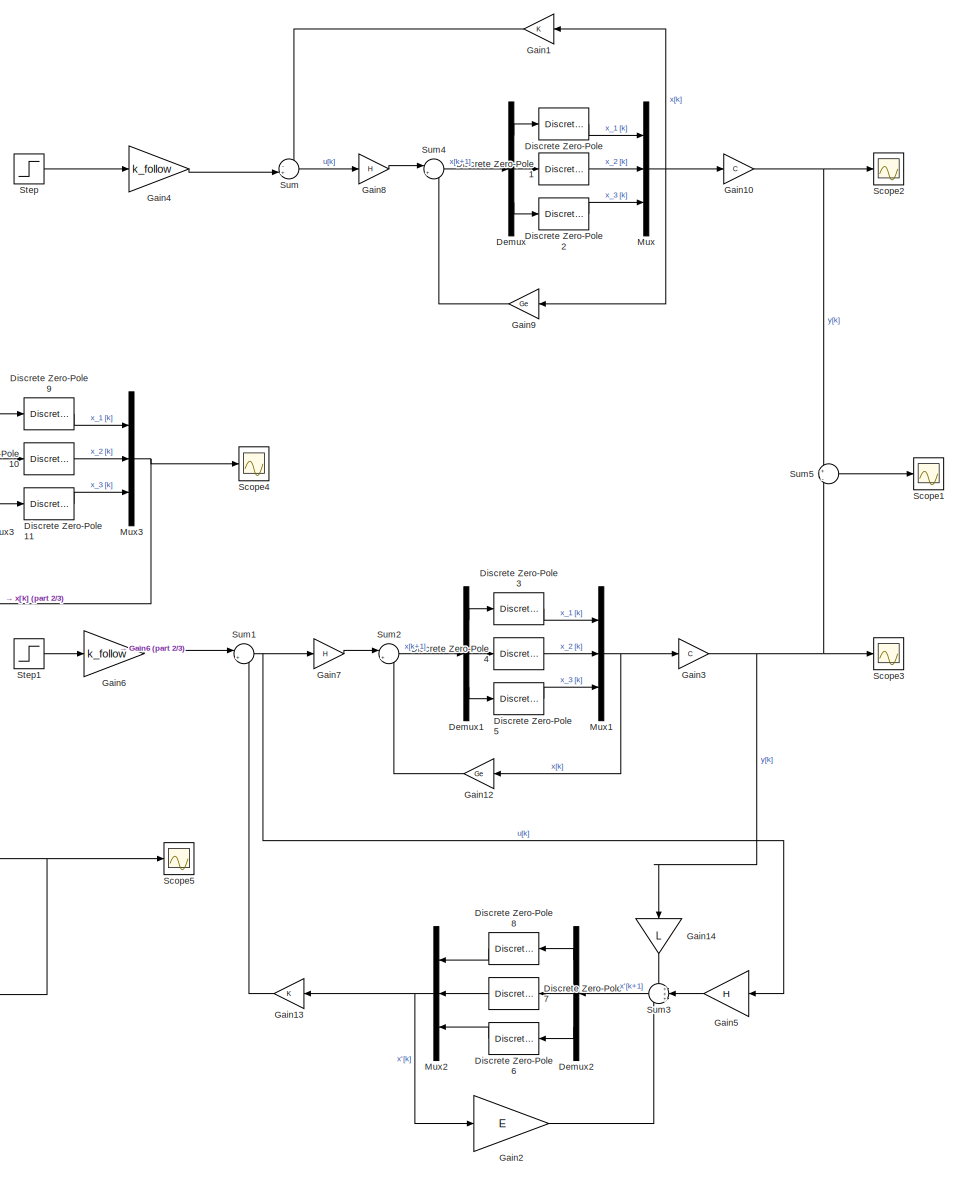
[diagram: root canvas - part 1/3, right side, full height]
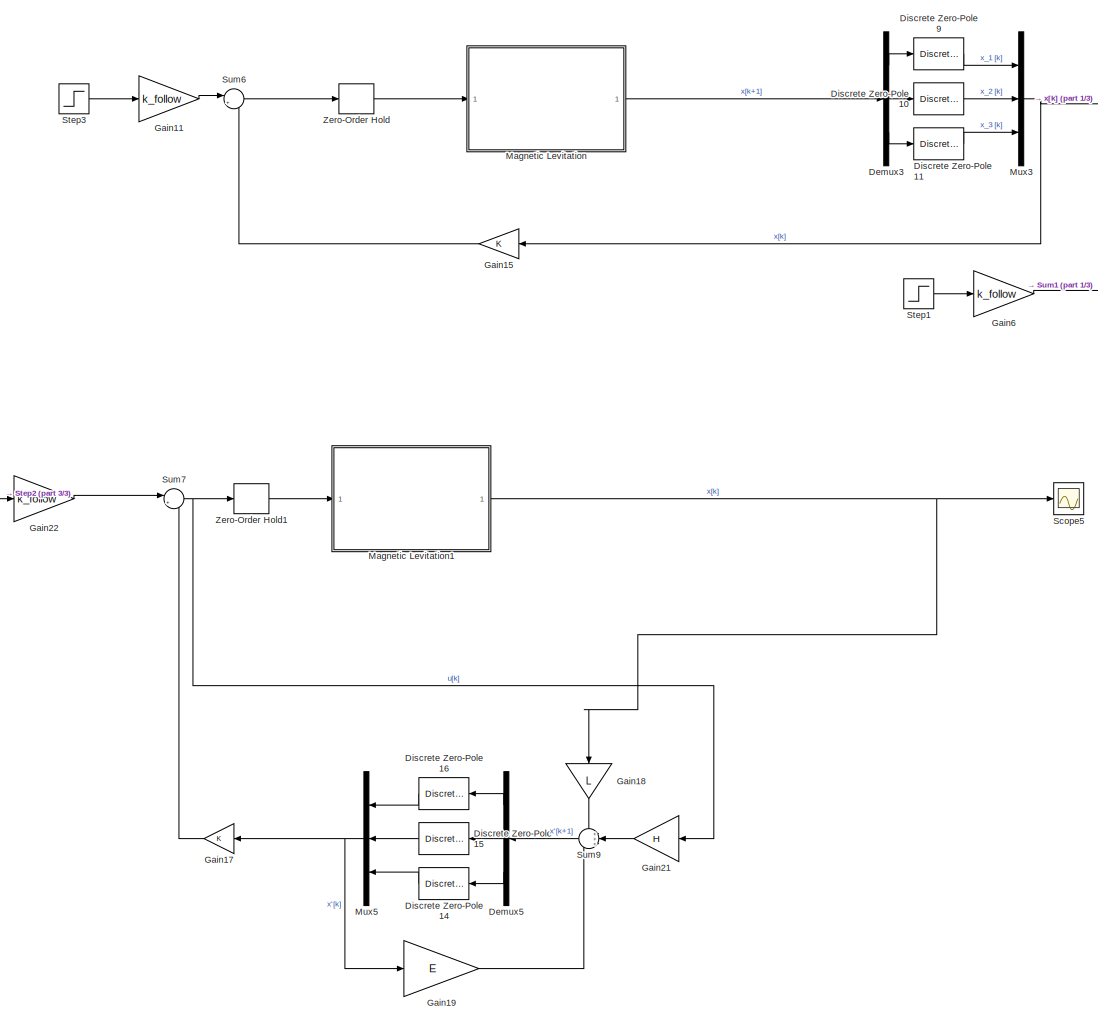
[diagram: root canvas - part 2/3, middle left region]
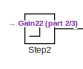
[diagram: root canvas - part 3/3, middle left region]
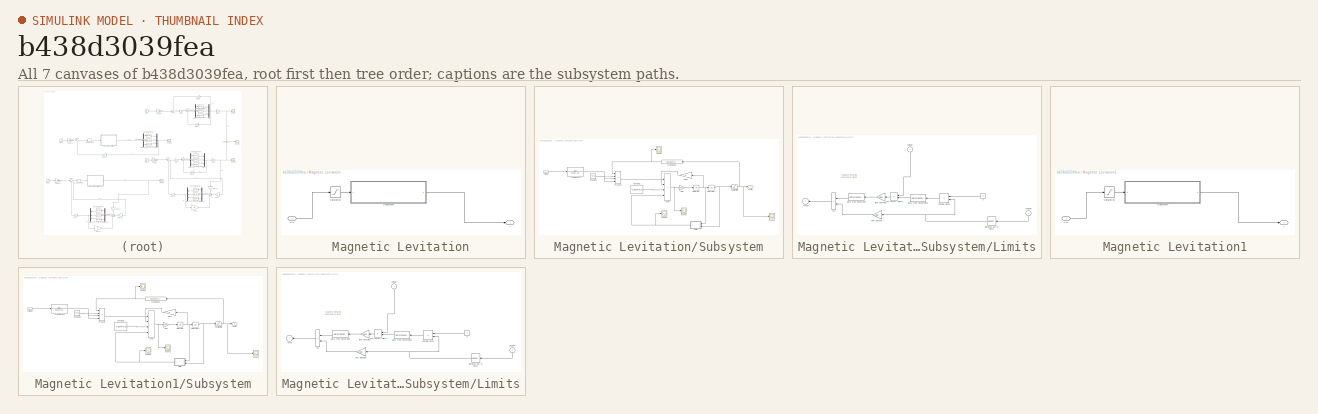
[diagram: thumbnail index - all 7 canvases of the model, root first then tree order]
MODEL slx_b438d3039fea
KIND model
CONFIG AbsTol = auto
CONFIG EnableMultiTasking = off
CONFIG FixedStep = auto
CONFIG MaxStep = auto
CONFIG MinStep = auto
CONFIG RelTol = 1e-3
CONFIG SampleTimeConstraint = Unconstrained
CONFIG SolverName = VariableStepAuto
CONFIG StartTime = 0.0
CONFIG StopTime = 10.0
BLOCK [Demux] Demux
  Outputs = 3
  Ports = [1, 3]
BLOCK [Demux] Demux1
  Outputs = 3
  Ports = [1, 3]
BLOCK [Demux] Demux2
  Outputs = 3
  Ports = [1, 3]
BLOCK [Demux] Demux3
  Outputs = 3
  Ports = [1, 3]
BLOCK [Demux] Demux5
  Outputs = 3
  Ports = [1, 3]
BLOCK [DiscreteZeroPole] Discrete Zero-Pole
  Gain = 1
  Poles = [0]
  SampleTime = Ts(2)
  Zeros = []
BLOCK [DiscreteZeroPole] Discrete Zero-Pole1
  Gain = 1
  Poles = [0]
  SampleTime = Ts(2)
  Zeros = []
BLOCK [DiscreteZeroPole] Discrete Zero-Pole10
  Gain = 1
  Poles = [0]
  SampleTime = Ts(4)
BLOCK [DiscreteZeroPole] Discrete Zero-Pole11
  Gain = 1
  Poles = [0]
  SampleTime = Ts(4)
  Zeros = []
BLOCK [DiscreteZeroPole] Discrete Zero-Pole14
  Gain = 1
  NameLocation = top
  Poles = [0]
  SampleTime = Ts(2)
  Zeros = []
BLOCK [DiscreteZeroPole] Discrete Zero-Pole15
  Gain = 1
  NameLocation = top
  Poles = [0]
  SampleTime = Ts(2)
  Zeros = []
BLOCK [DiscreteZeroPole] Discrete Zero-Pole16
  Gain = 1
  NameLocation = top
  Poles = [0]
  SampleTime = Ts(2)
  Zeros = []
BLOCK [DiscreteZeroPole] Discrete Zero-Pole2
  Gain = 1
  Poles = [0]
  SampleTime = Ts(2)
  Zeros = []
BLOCK [DiscreteZeroPole] Discrete Zero-Pole3
  Gain = 1
  Poles = [0]
  SampleTime = Ts(2)
  Zeros = []
BLOCK [DiscreteZeroPole] Discrete Zero-Pole4
  Gain = 1
  Poles = [0]
  SampleTime = Ts(2)
  Zeros = []
BLOCK [DiscreteZeroPole] Discrete Zero-Pole5
  Gain = 1
  Poles = [0]
  SampleTime = Ts(2)
  Zeros = []
BLOCK [DiscreteZeroPole] Discrete Zero-Pole6
  Gain = 1
  NameLocation = top
  Poles = [0]
  SampleTime = Ts(2)
  Zeros = []
BLOCK [DiscreteZeroPole] Discrete Zero-Pole7
  Gain = 1
  NameLocation = top
  Poles = [0]
  SampleTime = Ts(2)
  Zeros = []
BLOCK [DiscreteZeroPole] Discrete Zero-Pole8
  Gain = 1
  NameLocation = top
  Poles = [0]
  SampleTime = Ts(2)
  Zeros = []
BLOCK [DiscreteZeroPole] Discrete Zero-Pole9
  Gain = 1
  Poles = []
  SampleTime = Ts(4)
  Zeros = []
BLOCK [Gain] Gain1
  Gain = K
  Multiplication = Matrix(K*u)
  NameLocation = top
BLOCK [Gain] Gain10
  Gain = C
  Multiplication = Matrix(K*u)
BLOCK [Gain] Gain11
  Gain = k_follow
BLOCK [Gain] Gain12
  Gain = Ge
  Multiplication = Matrix(K*u)
  NameLocation = top
BLOCK [Gain] Gain13
  Gain = K
  Multiplication = Matrix(K*u)
  NameLocation = top
BLOCK [Gain] Gain14
  Gain = L
  Multiplication = Matrix(K*u)
  NameLocation = left
BLOCK [Gain] Gain15
  Gain = K
  Multiplication = Matrix(K*u)
  NameLocation = top
BLOCK [Gain] Gain17
  Gain = K
  Multiplication = Matrix(K*u)
  NameLocation = top
BLOCK [Gain] Gain18
  Gain = L
  Multiplication = Matrix(K*u)
  NameLocation = left
BLOCK [Gain] Gain19
  Gain = E
  Multiplication = Matrix(K*u)
BLOCK [Gain] Gain2
  Gain = E
  Multiplication = Matrix(K*u)
BLOCK [Gain] Gain21
  Gain = H
  Multiplication = Matrix(K*u)
  NameLocation = top
BLOCK [Gain] Gain22
  Gain = k_follow
BLOCK [Gain] Gain3
  Gain = C
  Multiplication = Matrix(K*u)
BLOCK [Gain] Gain4
  Gain = k_follow
BLOCK [Gain] Gain5
  Gain = H
  Multiplication = Matrix(K*u)
  NameLocation = top
BLOCK [Gain] Gain6
  Gain = k_follow
BLOCK [Gain] Gain7
  Gain = H
  Multiplication = Matrix(K*u)
BLOCK [Gain] Gain8
  Gain = H
  Multiplication = Matrix(K*u)
BLOCK [Gain] Gain9
  Gain = Ge
  Multiplication = Matrix(K*u)
  NameLocation = top
BLOCK [SubSystem] Magnetic Levitation
  Permissions = NoReadOrWrite
  Ports = [1, 1]
  RequestExecContextInheritance = off
BLOCK [Saturate] Magnetic Levitation/Saturation
  LowerLimit = -6
  UpperLimit = 10
  ZeroCross = off
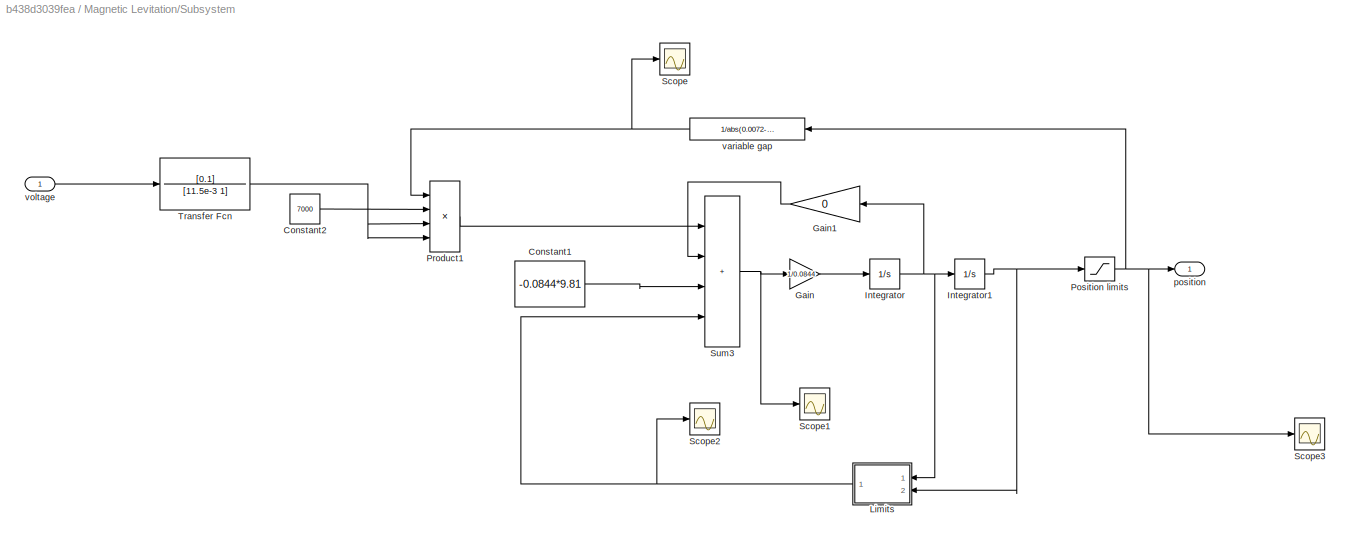
BLOCK [SubSystem] Magnetic Levitation/Subsystem
  Ports = [1, 1]
  RequestExecContextInheritance = off
BLOCK [Constant] Magnetic Levitation/Subsystem/Constant1
  Value = -0.0844*9.81
BLOCK [Constant] Magnetic Levitation/Subsystem/Constant2
  Value = 7000
BLOCK [Gain] Magnetic Levitation/Subsystem/Gain
  Gain = 1/0.0844
BLOCK [Gain] Magnetic Levitation/Subsystem/Gain1
  Gain = 0
  NameLocation = top
BLOCK [Integrator] Magnetic Levitation/Subsystem/Integrator
  Ports = [1, 1]
BLOCK [Integrator] Magnetic Levitation/Subsystem/Integrator1
  LimitOutput = on
  LowerSaturationLimit = 0
  Ports = [1, 1]
  UpperSaturationLimit = 0.005
BLOCK [SubSystem] Magnetic Levitation/Subsystem/Limits
  Ports = [2, 1]
  RequestExecContextInheritance = off
  ShowPortLabels = none
BLOCK [Constant] Magnetic Levitation/Subsystem/Limits/0
  Value = 0
BLOCK [DataTypeConversion] Magnetic Levitation/Subsystem/Limits/Data Type Conversion
  NameLocation = top
  OutDataTypeStr = double
  RndMeth = Floor
  SaturateOnIntegerOverflow = off
BLOCK [DataTypeConversion] Magnetic Levitation/Subsystem/Limits/Data Type Conversion1
  NameLocation = top
  OutDataTypeStr = double
  RndMeth = Floor
  SaturateOnIntegerOverflow = off
BLOCK [DeadZone] Magnetic Levitation/Subsystem/Limits/Distance out of limits
  LowerValue = 0.0002
  UpperValue = 5e-3
  ZeroCross = off
BLOCK [Sum] Magnetic Levitation/Subsystem/Limits/Fc1
  IconShape = rectangular
  InputSameDT = on
  Inputs = --
  OutDataTypeStr = Inherit: Same as first input
  Ports = [2, 1]
  SaturateOnIntegerOverflow = on
BLOCK [Product] Magnetic Levitation/Subsystem/Limits/Just on//off switch 
  InputSameDT = on
  OutDataTypeStr = Inherit: Same as first input
  Ports = [2, 1]
  SaturateOnIntegerOverflow = on
BLOCK [RelationalOperator] Magnetic Levitation/Subsystem/Limits/Outside Limits
  Operator = ~=
  Ports = [2, 1]
BLOCK [Outport] Magnetic Levitation/Subsystem/Limits/force
  VectorParamsAs1DForOutWhenUnconnected = off
BLOCK [Gain] Magnetic Levitation/Subsystem/Limits/limit damping
  Gain = 2800
  OutDataTypeStr = Inherit: Same as input
  ParamDataTypeStr = Inherit: Same as input
  SaturateOnIntegerOverflow = on
BLOCK [Gain] Magnetic Levitation/Subsystem/Limits/limit elasticity
  Gain = 500
  OutDataTypeStr = Inherit: Same as input
  ParamDataTypeStr = Inherit: Same as input
  SaturateOnIntegerOverflow = on
BLOCK [Inport] Magnetic Levitation/Subsystem/Limits/position
  NameLocation = right
  Port = 2
BLOCK [Inport] Magnetic Levitation/Subsystem/Limits/velocity
  NameLocation = right
BLOCK [Saturate] Magnetic Levitation/Subsystem/Position limits
  LowerLimit = 0.00001
  UpperLimit = 0.00499
  ZeroCross = off
BLOCK [Product] Magnetic Levitation/Subsystem/Product1
  Inputs = 4
  Ports = [4, 1]
BLOCK [Scope] Magnetic Levitation/Subsystem/Scope
  Floating = off
  NumInputPorts = 1
  Ports = [1]
  ScopeSpecificationString = Simulink.scopes.TimeScopeBlockCfg('CurrentConfiguration', extmgr.ConfigurationSet(extmgr.Configuration('Core','General UI',true),extmgr.Configuration('Core','Source UI',true),extmgr.Configuration('Sources','WiredSimulink',true,'DataLoggingVariableName','ScopeData1'),extmgr.Configuration('Visuals','Time Domain',true,'SerializedDisplays',{struct('MinYLimReal','-40.54054','MaxYLimReal','374.87487','Y...<+1381ch>
BLOCK [Scope] Magnetic Levitation/Subsystem/Scope1
  Floating = off
  NumInputPorts = 1
  Ports = [1]
  ScopeSpecificationString = Simulink.scopes.TimeScopeBlockCfg('CurrentConfiguration', extmgr.ConfigurationSet(extmgr.Configuration('Core','General UI',true),extmgr.Configuration('Core','Source UI',true),extmgr.Configuration('Sources','WiredSimulink',true,'DataLoggingVariableName','ScopeData2'),extmgr.Configuration('Visuals','Time Domain',true,'SerializedDisplays',{struct('MinYLimReal','-21376391083219120442781708779858395089...<+3841ch>
BLOCK [Scope] Magnetic Levitation/Subsystem/Scope2
  Floating = off
  NumInputPorts = 1
  Ports = [1]
  ScopeSpecificationString = Simulink.scopes.TimeScopeBlockCfg('CurrentConfiguration', extmgr.ConfigurationSet(extmgr.Configuration('Core','General UI',true),extmgr.Configuration('Core','Source UI',true),extmgr.Configuration('Sources','WiredSimulink',true,'DataLoggingVariableName','ScopeData3'),extmgr.Configuration('Visuals','Time Domain',true,'SerializedDisplays',{struct('MinYLimReal','-0.1107','MaxYLimReal','1.19629','YLabe...<+1363ch>
BLOCK [Scope] Magnetic Levitation/Subsystem/Scope3
  Floating = off
  NumInputPorts = 1
  Ports = [1]
  ScopeSpecificationString = Simulink.scopes.TimeScopeBlockCfg('CurrentConfiguration', extmgr.ConfigurationSet(extmgr.Configuration('Core','General UI',true),extmgr.Configuration('Core','Source UI',true),extmgr.Configuration('Sources','WiredSimulink',true,'DataLoggingVariableName','ScopeData2'),extmgr.Configuration('Visuals','Time Domain',true,'SerializedDisplays',{struct('MinYLimReal','-0.00029','MaxYLimReal','0.00267','YLab...<+1402ch>
BLOCK [Sum] Magnetic Levitation/Subsystem/Sum3
  IconShape = rectangular
  Inputs = ++++
  Ports = [4, 1]
BLOCK [TransferFcn] Magnetic Levitation/Subsystem/Transfer Fcn
  Denominator = [11.5e-3 1]
  Numerator = [0.1]
BLOCK [Outport] Magnetic Levitation/Subsystem/position 
  VectorParamsAs1DForOutWhenUnconnected = off
BLOCK [Fcn] Magnetic Levitation/Subsystem/variable gap
  Expr = 1/abs(0.0072-u)
BLOCK [Inport] Magnetic Levitation/Subsystem/voltage
BLOCK [Inport] Magnetic Levitation/Vin
BLOCK [Outport] Magnetic Levitation/y
  VectorParamsAs1DForOutWhenUnconnected = off
BLOCK [SubSystem] Magnetic Levitation1
  Permissions = NoReadOrWrite
  Ports = [1, 1]
  RequestExecContextInheritance = off
BLOCK [Saturate] Magnetic Levitation1/Saturation
  LowerLimit = -6
  UpperLimit = 10
  ZeroCross = off
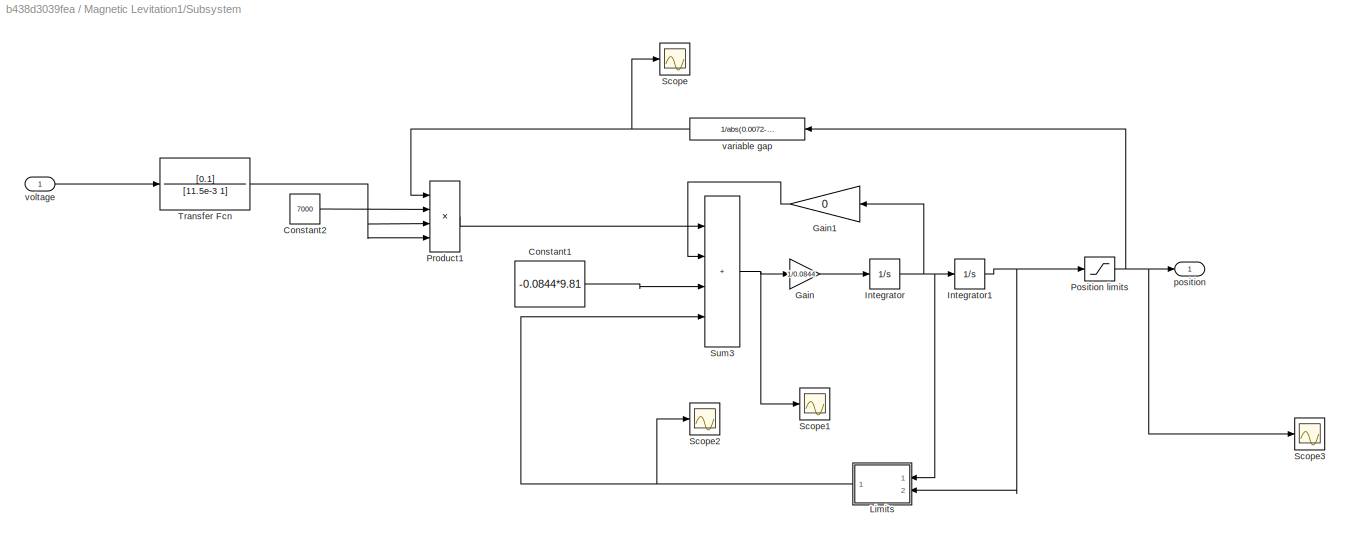
BLOCK [SubSystem] Magnetic Levitation1/Subsystem
  Ports = [1, 1]
  RequestExecContextInheritance = off
BLOCK [Constant] Magnetic Levitation1/Subsystem/Constant1
  Value = -0.0844*9.81
BLOCK [Constant] Magnetic Levitation1/Subsystem/Constant2
  Value = 7000
BLOCK [Gain] Magnetic Levitation1/Subsystem/Gain
  Gain = 1/0.0844
BLOCK [Gain] Magnetic Levitation1/Subsystem/Gain1
  Gain = 0
  NameLocation = top
BLOCK [Integrator] Magnetic Levitation1/Subsystem/Integrator
  Ports = [1, 1]
BLOCK [Integrator] Magnetic Levitation1/Subsystem/Integrator1
  LimitOutput = on
  LowerSaturationLimit = 0
  Ports = [1, 1]
  UpperSaturationLimit = 0.005
BLOCK [SubSystem] Magnetic Levitation1/Subsystem/Limits
  Ports = [2, 1]
  RequestExecContextInheritance = off
  ShowPortLabels = none
BLOCK [Constant] Magnetic Levitation1/Subsystem/Limits/0
  Value = 0
BLOCK [DataTypeConversion] Magnetic Levitation1/Subsystem/Limits/Data Type Conversion
  NameLocation = top
  OutDataTypeStr = double
  RndMeth = Floor
  SaturateOnIntegerOverflow = off
BLOCK [DataTypeConversion] Magnetic Levitation1/Subsystem/Limits/Data Type Conversion1
  NameLocation = top
  OutDataTypeStr = double
  RndMeth = Floor
  SaturateOnIntegerOverflow = off
BLOCK [DeadZone] Magnetic Levitation1/Subsystem/Limits/Distance out of limits
  LowerValue = 0.0002
  UpperValue = 5e-3
  ZeroCross = off
BLOCK [Sum] Magnetic Levitation1/Subsystem/Limits/Fc1
  IconShape = rectangular
  InputSameDT = on
  Inputs = --
  OutDataTypeStr = Inherit: Same as first input
  Ports = [2, 1]
  SaturateOnIntegerOverflow = on
BLOCK [Product] Magnetic Levitation1/Subsystem/Limits/Just on//off switch 
  InputSameDT = on
  OutDataTypeStr = Inherit: Same as first input
  Ports = [2, 1]
  SaturateOnIntegerOverflow = on
BLOCK [RelationalOperator] Magnetic Levitation1/Subsystem/Limits/Outside Limits
  Operator = ~=
  Ports = [2, 1]
BLOCK [Outport] Magnetic Levitation1/Subsystem/Limits/force
  VectorParamsAs1DForOutWhenUnconnected = off
BLOCK [Gain] Magnetic Levitation1/Subsystem/Limits/limit damping
  Gain = 2800
  OutDataTypeStr = Inherit: Same as input
  ParamDataTypeStr = Inherit: Same as input
  SaturateOnIntegerOverflow = on
BLOCK [Gain] Magnetic Levitation1/Subsystem/Limits/limit elasticity
  Gain = 500
  OutDataTypeStr = Inherit: Same as input
  ParamDataTypeStr = Inherit: Same as input
  SaturateOnIntegerOverflow = on
BLOCK [Inport] Magnetic Levitation1/Subsystem/Limits/position
  NameLocation = right
  Port = 2
BLOCK [Inport] Magnetic Levitation1/Subsystem/Limits/velocity
  NameLocation = right
BLOCK [Saturate] Magnetic Levitation1/Subsystem/Position limits
  LowerLimit = 0.00001
  UpperLimit = 0.00499
  ZeroCross = off
BLOCK [Product] Magnetic Levitation1/Subsystem/Product1
  Inputs = 4
  Ports = [4, 1]
BLOCK [Scope] Magnetic Levitation1/Subsystem/Scope
  Floating = off
  NumInputPorts = 1
  Ports = [1]
  ScopeSpecificationString = Simulink.scopes.TimeScopeBlockCfg('CurrentConfiguration', extmgr.ConfigurationSet(extmgr.Configuration('Core','General UI',true),extmgr.Configuration('Core','Source UI',true),extmgr.Configuration('Sources','WiredSimulink',true,'DataLoggingVariableName','ScopeData1'),extmgr.Configuration('Visuals','Time Domain',true,'SerializedDisplays',{struct('MinYLimReal','-40.54054','MaxYLimReal','374.87487','Y...<+1381ch>
BLOCK [Scope] Magnetic Levitation1/Subsystem/Scope1
  Floating = off
  NumInputPorts = 1
  Ports = [1]
  ScopeSpecificationString = Simulink.scopes.TimeScopeBlockCfg('CurrentConfiguration', extmgr.ConfigurationSet(extmgr.Configuration('Core','General UI',true),extmgr.Configuration('Core','Source UI',true),extmgr.Configuration('Sources','WiredSimulink',true,'DataLoggingVariableName','ScopeData2'),extmgr.Configuration('Visuals','Time Domain',true,'SerializedDisplays',{struct('MinYLimReal','-21376391083219120442781708779858395089...<+3841ch>
BLOCK [Scope] Magnetic Levitation1/Subsystem/Scope2
  Floating = off
  NumInputPorts = 1
  Ports = [1]
  ScopeSpecificationString = Simulink.scopes.TimeScopeBlockCfg('CurrentConfiguration', extmgr.ConfigurationSet(extmgr.Configuration('Core','General UI',true),extmgr.Configuration('Core','Source UI',true),extmgr.Configuration('Sources','WiredSimulink',true,'DataLoggingVariableName','ScopeData3'),extmgr.Configuration('Visuals','Time Domain',true,'SerializedDisplays',{struct('MinYLimReal','-0.1107','MaxYLimReal','1.19629','YLabe...<+1363ch>
BLOCK [Scope] Magnetic Levitation1/Subsystem/Scope3
  Floating = off
  NumInputPorts = 1
  Ports = [1]
  ScopeSpecificationString = Simulink.scopes.TimeScopeBlockCfg('CurrentConfiguration', extmgr.ConfigurationSet(extmgr.Configuration('Core','General UI',true),extmgr.Configuration('Core','Source UI',true),extmgr.Configuration('Sources','WiredSimulink',true,'DataLoggingVariableName','ScopeData2'),extmgr.Configuration('Visuals','Time Domain',true,'SerializedDisplays',{struct('MinYLimReal','-0.00029','MaxYLimReal','0.00267','YLab...<+1402ch>
BLOCK [Sum] Magnetic Levitation1/Subsystem/Sum3
  IconShape = rectangular
  Inputs = ++++
  Ports = [4, 1]
BLOCK [TransferFcn] Magnetic Levitation1/Subsystem/Transfer Fcn
  Denominator = [11.5e-3 1]
  Numerator = [0.1]
BLOCK [Outport] Magnetic Levitation1/Subsystem/position 
  VectorParamsAs1DForOutWhenUnconnected = off
BLOCK [Fcn] Magnetic Levitation1/Subsystem/variable gap
  Expr = 1/abs(0.0072-u)
BLOCK [Inport] Magnetic Levitation1/Subsystem/voltage
BLOCK [Inport] Magnetic Levitation1/Vin
BLOCK [Outport] Magnetic Levitation1/y
  VectorParamsAs1DForOutWhenUnconnected = off
BLOCK [Mux] Mux
  DisplayOption = bar
  Inputs = 3
  Ports = [3, 1]
BLOCK [Mux] Mux1
  DisplayOption = bar
  Inputs = 3
  Ports = [3, 1]
BLOCK [Mux] Mux2
  DisplayOption = bar
  Inputs = 3
  Ports = [3, 1]
BLOCK [Mux] Mux3
  DisplayOption = bar
  Inputs = 3
  Ports = [3, 1]
BLOCK [Mux] Mux5
  DisplayOption = bar
  Inputs = 3
  Ports = [3, 1]
BLOCK [Scope] Scope1
  Floating = off
  NumInputPorts = 1
  Ports = [1]
  ScopeSpecificationString = Simulink.scopes.TimeScopeBlockCfg('CurrentConfiguration', extmgr.ConfigurationSet(extmgr.Configuration('Core','General UI',true),extmgr.Configuration('Core','Source UI',true),extmgr.Configuration('Sources','WiredSimulink',true,'DataLoggingVariableName','ScopeData1'),extmgr.Configuration('Visuals','Time Domain',true,'SerializedDisplays',{struct('MinYLimReal','-0.0000000000000045','MaxYLimReal','0.0...<+1613ch>
BLOCK [Scope] Scope2
  Floating = off
  NumInputPorts = 1
  Ports = [1]
  ScopeSpecificationString = Simulink.scopes.TimeScopeBlockCfg('CurrentConfiguration', extmgr.ConfigurationSet(extmgr.Configuration('Core','General UI',true),extmgr.Configuration('Core','Source UI',true),extmgr.Configuration('Sources','WiredSimulink',true,'DataLoggingVariableName','ScopeData2'),extmgr.Configuration('Visuals','Time Domain',true,'SerializedDisplays',{struct('MinYLimReal','-0.125','MaxYLimReal','1.125','YLabelRe...<+1378ch>
BLOCK [Scope] Scope3
  Floating = off
  NumInputPorts = 1
  Ports = [1]
  ScopeSpecificationString = Simulink.scopes.TimeScopeBlockCfg('CurrentConfiguration', extmgr.ConfigurationSet(extmgr.Configuration('Core','General UI',true),extmgr.Configuration('Core','Source UI',true),extmgr.Configuration('Sources','WiredSimulink',true),extmgr.Configuration('Visuals','Time Domain',true,'SerializedDisplays',{struct('MinYLimReal','-0.125','MaxYLimReal','1.125','YLabelReal','','MinYLimMag','0.00000','MaxYLimM...<+1387ch>
BLOCK [Scope] Scope4
  Floating = off
  NumInputPorts = 1
  Ports = [1]
  ScopeSpecificationString = Simulink.scopes.TimeScopeBlockCfg('CurrentConfiguration', extmgr.ConfigurationSet(extmgr.Configuration('Core','General UI',true),extmgr.Configuration('Core','Source UI',true),extmgr.Configuration('Sources','WiredSimulink',true,'DataLoggingVariableName','ScopeData3'),extmgr.Configuration('Visuals','Time Domain',true,'SerializedDisplays',{struct('MinYLimReal','-0.00062','MaxYLimReal','0.00561','YLab...<+1545ch>
BLOCK [Scope] Scope5
  Floating = off
  NumInputPorts = 1
  Ports = [1]
  ScopeSpecificationString = Simulink.scopes.TimeScopeBlockCfg('CurrentConfiguration', extmgr.ConfigurationSet(extmgr.Configuration('Core','General UI',true),extmgr.Configuration('Core','Source UI',true),extmgr.Configuration('Sources','WiredSimulink',true,'DataLoggingVariableName','ScopeData4'),extmgr.Configuration('Visuals','Time Domain',true,'SerializedDisplays',{struct('MinYLimReal','-0.125','MaxYLimReal','1.125','YLabelRe...<+1424ch>
BLOCK [Step] Step
  SampleTime = 0
  Time = 0
BLOCK [Step] Step1
  SampleTime = 0
  Time = 0
BLOCK [Step] Step2
  SampleTime = 0
  Time = 0.0001
BLOCK [Step] Step3
  SampleTime = 0.001
  Time = 0
BLOCK [Sum] Sum
  Inputs = -+|
  Ports = [2, 1]
BLOCK [Sum] Sum1
  Inputs = |+-
  Ports = [2, 1]
BLOCK [Sum] Sum2
  Inputs = |++
  Ports = [2, 1]
BLOCK [Sum] Sum3
  Inputs = +++
  Ports = [3, 1]
BLOCK [Sum] Sum4
  Inputs = |++
  Ports = [2, 1]
BLOCK [Sum] Sum5
  Inputs = +|-
  Ports = [2, 1]
BLOCK [Sum] Sum6
  Inputs = |+-
  Ports = [2, 1]
BLOCK [Sum] Sum7
  Inputs = |+-
  Ports = [2, 1]
BLOCK [Sum] Sum9
  Inputs = +++
  Ports = [3, 1]
BLOCK [ZeroOrderHold] Zero-Order Hold
  SampleTime = -1
BLOCK [ZeroOrderHold] Zero-Order Hold1
  SampleTime = -1
ANNOTATION Magnetic Levitation/Subsystem/Limits: Magnetic levitation submodel of limits
ANNOTATION Magnetic Levitation1/Subsystem/Limits: Magnetic levitation submodel of limits
LINE Demux1:1 -> Discrete Zero-Pole3:1
LINE Demux1:2 -> Discrete Zero-Pole4:1
LINE Demux1:3 -> Discrete Zero-Pole5:1
LINE Demux2:1 -> Discrete Zero-Pole8:1
LINE Demux2:2 -> Discrete Zero-Pole7:1
LINE Demux2:3 -> Discrete Zero-Pole6:1
LINE Demux3:1 -> Discrete Zero-Pole9:1
LINE Demux3:2 -> Discrete Zero-Pole10:1
LINE Demux3:3 -> Discrete Zero-Pole11:1
LINE Demux5:1 -> Discrete Zero-Pole16:1
LINE Demux5:2 -> Discrete Zero-Pole15:1
LINE Demux5:3 -> Discrete Zero-Pole14:1
LINE Demux:1 -> Discrete Zero-Pole:1
LINE Demux:2 -> Discrete Zero-Pole1:1
LINE Demux:3 -> Discrete Zero-Pole2:1
LINE Discrete Zero-Pole10:1 -> Mux3:2
LINE Discrete Zero-Pole11:1 -> Mux3:3
LINE Discrete Zero-Pole14:1 -> Mux5:3
LINE Discrete Zero-Pole15:1 -> Mux5:2
LINE Discrete Zero-Pole16:1 -> Mux5:1
LINE Discrete Zero-Pole1:1 -> Mux:2
LINE Discrete Zero-Pole2:1 -> Mux:3
LINE Discrete Zero-Pole3:1 -> Mux1:1
LINE Discrete Zero-Pole4:1 -> Mux1:2
LINE Discrete Zero-Pole5:1 -> Mux1:3
LINE Discrete Zero-Pole6:1 -> Mux2:3
LINE Discrete Zero-Pole7:1 -> Mux2:2
LINE Discrete Zero-Pole8:1 -> Mux2:1
LINE Discrete Zero-Pole9:1 -> Mux3:1
LINE Discrete Zero-Pole:1 -> Mux:1
NET Gain10:1 -> Scope2:1, Sum5:1
LINE Gain11:1 -> Sum6:1
LINE Gain12:1 -> Sum2:2
LINE Gain13:1 -> Sum1:2
LINE Gain14:1 -> Sum3:1
LINE Gain15:1 -> Sum6:2
LINE Gain17:1 -> Sum7:2
LINE Gain18:1 -> Sum9:1
LINE Gain19:1 -> Sum9:3
LINE Gain1:1 -> Sum:1
LINE Gain21:1 -> Sum9:2
LINE Gain22:1 -> Sum7:1
LINE Gain2:1 -> Sum3:3
NET Gain3:1 -> Gain14:1, Scope3:1, Sum5:2
LINE Gain4:1 -> Sum:2
LINE Gain5:1 -> Sum3:2
LINE Gain6:1 -> Sum1:1
LINE Gain7:1 -> Sum2:1
LINE Gain8:1 -> Sum4:1
LINE Gain9:1 -> Sum4:2
LINE Magnetic Levitation/Saturation:1 -> Magnetic Levitation/Subsystem:1
LINE Magnetic Levitation/Subsystem/Constant1:1 -> Magnetic Levitation/Subsystem/Sum3:3
LINE Magnetic Levitation/Subsystem/Constant2:1 -> Magnetic Levitation/Subsystem/Product1:2
LINE Magnetic Levitation/Subsystem/Gain1:1 -> Magnetic Levitation/Subsystem/Sum3:2
LINE Magnetic Levitation/Subsystem/Gain:1 -> Magnetic Levitation/Subsystem/Integrator:1
NET Magnetic Levitation/Subsystem/Integrator1:1 -> Magnetic Levitation/Subsystem/Limits:2, Magnetic Levitation/Subsystem/Position limits:1
NET Magnetic Levitation/Subsystem/Integrator:1 -> Magnetic Levitation/Subsystem/Gain1:1, Magnetic Levitation/Subsystem/Integrator1:1, Magnetic Levitation/Subsystem/Limits:1
LINE Magnetic Levitation/Subsystem/Limits/0:1 -> Magnetic Levitation/Subsystem/Limits/Outside Limits:1
LINE Magnetic Levitation/Subsystem/Limits/Data Type Conversion1:1 -> Magnetic Levitation/Subsystem/Limits/Just on//off switch :2
LINE Magnetic Levitation/Subsystem/Limits/Data Type Conversion:1 -> Magnetic Levitation/Subsystem/Limits/Fc1:1
NET Magnetic Levitation/Subsystem/Limits/Distance out of limits:1 -> Magnetic Levitation/Subsystem/Limits/Outside Limits:2, Magnetic Levitation/Subsystem/Limits/limit elasticity:1
LINE Magnetic Levitation/Subsystem/Limits/Fc1:1 -> Magnetic Levitation/Subsystem/Limits/force:1
LINE Magnetic Levitation/Subsystem/Limits/Just on//off switch :1 -> Magnetic Levitation/Subsystem/Limits/limit damping:1
LINE Magnetic Levitation/Subsystem/Limits/Outside Limits:1 -> Magnetic Levitation/Subsystem/Limits/Data Type Conversion1:1
LINE Magnetic Levitation/Subsystem/Limits/limit damping:1 -> Magnetic Levitation/Subsystem/Limits/Data Type Conversion:1
LINE Magnetic Levitation/Subsystem/Limits/limit elasticity:1 -> Magnetic Levitation/Subsystem/Limits/Fc1:2
LINE Magnetic Levitation/Subsystem/Limits/position:1 -> Magnetic Levitation/Subsystem/Limits/Distance out of limits:1
LINE Magnetic Levitation/Subsystem/Limits/velocity:1 -> Magnetic Levitation/Subsystem/Limits/Just on//off switch :1
NET Magnetic Levitation/Subsystem/Limits:1 -> Magnetic Levitation/Subsystem/Scope2:1, Magnetic Levitation/Subsystem/Sum3:4
NET Magnetic Levitation/Subsystem/Position limits:1 -> Magnetic Levitation/Subsystem/Scope3:1, Magnetic Levitation/Subsystem/position :1, Magnetic Levitation/Subsystem/variable gap:1
LINE Magnetic Levitation/Subsystem/Product1:1 -> Magnetic Levitation/Subsystem/Sum3:1
NET Magnetic Levitation/Subsystem/Sum3:1 -> Magnetic Levitation/Subsystem/Gain:1, Magnetic Levitation/Subsystem/Scope1:1
NET Magnetic Levitation/Subsystem/Transfer Fcn:1 -> Magnetic Levitation/Subsystem/Product1:3, Magnetic Levitation/Subsystem/Product1:4
NET Magnetic Levitation/Subsystem/variable gap:1 -> Magnetic Levitation/Subsystem/Product1:1, Magnetic Levitation/Subsystem/Scope:1
LINE Magnetic Levitation/Subsystem/voltage:1 -> Magnetic Levitation/Subsystem/Transfer Fcn:1
LINE Magnetic Levitation/Subsystem:1 -> Magnetic Levitation/y:1
LINE Magnetic Levitation/Vin:1 -> Magnetic Levitation/Saturation:1
LINE Magnetic Levitation1/Saturation:1 -> Magnetic Levitation1/Subsystem:1
LINE Magnetic Levitation1/Subsystem/Constant1:1 -> Magnetic Levitation1/Subsystem/Sum3:3
LINE Magnetic Levitation1/Subsystem/Constant2:1 -> Magnetic Levitation1/Subsystem/Product1:2
LINE Magnetic Levitation1/Subsystem/Gain1:1 -> Magnetic Levitation1/Subsystem/Sum3:2
LINE Magnetic Levitation1/Subsystem/Gain:1 -> Magnetic Levitation1/Subsystem/Integrator:1
NET Magnetic Levitation1/Subsystem/Integrator1:1 -> Magnetic Levitation1/Subsystem/Limits:2, Magnetic Levitation1/Subsystem/Position limits:1
NET Magnetic Levitation1/Subsystem/Integrator:1 -> Magnetic Levitation1/Subsystem/Gain1:1, Magnetic Levitation1/Subsystem/Integrator1:1, Magnetic Levitation1/Subsystem/Limits:1
LINE Magnetic Levitation1/Subsystem/Limits/0:1 -> Magnetic Levitation1/Subsystem/Limits/Outside Limits:1
LINE Magnetic Levitation1/Subsystem/Limits/Data Type Conversion1:1 -> Magnetic Levitation1/Subsystem/Limits/Just on//off switch :2
LINE Magnetic Levitation1/Subsystem/Limits/Data Type Conversion:1 -> Magnetic Levitation1/Subsystem/Limits/Fc1:1
NET Magnetic Levitation1/Subsystem/Limits/Distance out of limits:1 -> Magnetic Levitation1/Subsystem/Limits/Outside Limits:2, Magnetic Levitation1/Subsystem/Limits/limit elasticity:1
LINE Magnetic Levitation1/Subsystem/Limits/Fc1:1 -> Magnetic Levitation1/Subsystem/Limits/force:1
LINE Magnetic Levitation1/Subsystem/Limits/Just on//off switch :1 -> Magnetic Levitation1/Subsystem/Limits/limit damping:1
LINE Magnetic Levitation1/Subsystem/Limits/Outside Limits:1 -> Magnetic Levitation1/Subsystem/Limits/Data Type Conversion1:1
LINE Magnetic Levitation1/Subsystem/Limits/limit damping:1 -> Magnetic Levitation1/Subsystem/Limits/Data Type Conversion:1
LINE Magnetic Levitation1/Subsystem/Limits/limit elasticity:1 -> Magnetic Levitation1/Subsystem/Limits/Fc1:2
LINE Magnetic Levitation1/Subsystem/Limits/position:1 -> Magnetic Levitation1/Subsystem/Limits/Distance out of limits:1
LINE Magnetic Levitation1/Subsystem/Limits/velocity:1 -> Magnetic Levitation1/Subsystem/Limits/Just on//off switch :1
NET Magnetic Levitation1/Subsystem/Limits:1 -> Magnetic Levitation1/Subsystem/Scope2:1, Magnetic Levitation1/Subsystem/Sum3:4
NET Magnetic Levitation1/Subsystem/Position limits:1 -> Magnetic Levitation1/Subsystem/Scope3:1, Magnetic Levitation1/Subsystem/position :1, Magnetic Levitation1/Subsystem/variable gap:1
LINE Magnetic Levitation1/Subsystem/Product1:1 -> Magnetic Levitation1/Subsystem/Sum3:1
NET Magnetic Levitation1/Subsystem/Sum3:1 -> Magnetic Levitation1/Subsystem/Gain:1, Magnetic Levitation1/Subsystem/Scope1:1
NET Magnetic Levitation1/Subsystem/Transfer Fcn:1 -> Magnetic Levitation1/Subsystem/Product1:3, Magnetic Levitation1/Subsystem/Product1:4
NET Magnetic Levitation1/Subsystem/variable gap:1 -> Magnetic Levitation1/Subsystem/Product1:1, Magnetic Levitation1/Subsystem/Scope:1
LINE Magnetic Levitation1/Subsystem/voltage:1 -> Magnetic Levitation1/Subsystem/Transfer Fcn:1
LINE Magnetic Levitation1/Subsystem:1 -> Magnetic Levitation1/y:1
LINE Magnetic Levitation1/Vin:1 -> Magnetic Levitation1/Saturation:1
NET Magnetic Levitation1:1 -> Gain18:1, Scope5:1
LINE Magnetic Levitation:1 -> Demux3:1
NET Mux1:1 -> Gain12:1, Gain3:1
NET Mux2:1 -> Gain13:1, Gain2:1
NET Mux3:1 -> Gain15:1, Scope4:1
NET Mux5:1 -> Gain17:1, Gain19:1
NET Mux:1 -> Gain10:1, Gain1:1, Gain9:1
LINE Step1:1 -> Gain6:1
LINE Step2:1 -> Gain22:1
LINE Step3:1 -> Gain11:1
LINE Step:1 -> Gain4:1
NET Sum1:1 -> Gain5:1, Gain7:1
LINE Sum2:1 -> Demux1:1
LINE Sum3:1 -> Demux2:1
LINE Sum4:1 -> Demux:1
LINE Sum5:1 -> Scope1:1
LINE Sum6:1 -> Zero-Order Hold:1
NET Sum7:1 -> Gain21:1, Zero-Order Hold1:1
LINE Sum9:1 -> Demux5:1
LINE Sum:1 -> Gain8:1
LINE Zero-Order Hold1:1 -> Magnetic Levitation1:1
LINE Zero-Order Hold:1 -> Magnetic Levitation:1
note: NET lines group one-source signal fan-out (src -> all destinations, sorted); 1:1 wires keep LINE
